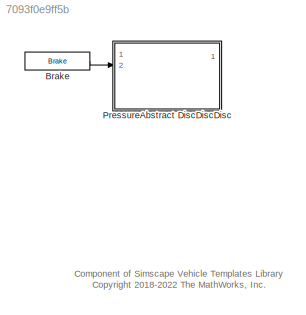
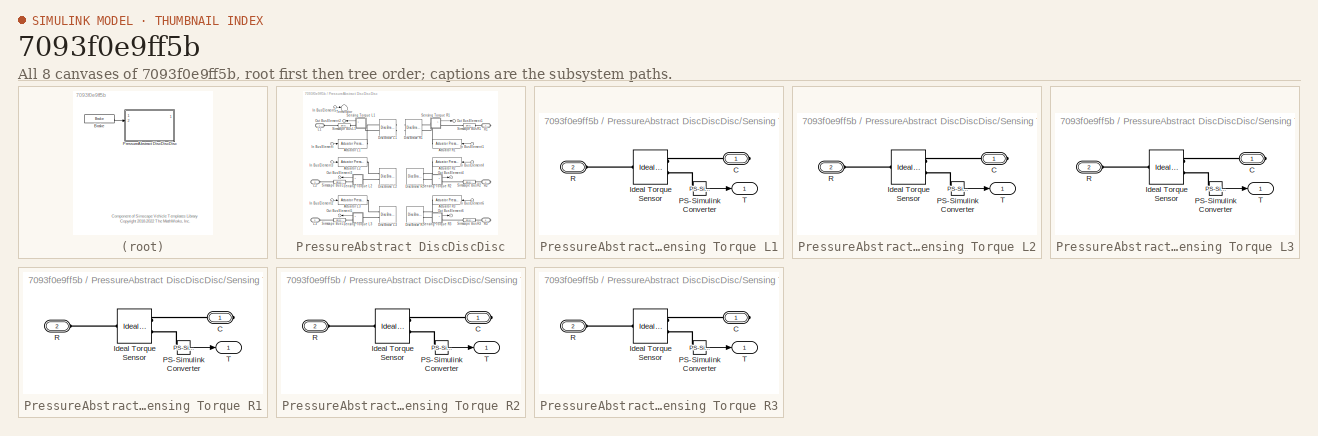
[diagram: thumbnail index - all 8 canvases of the model, root first then tree order]
MODEL slx_7093f0e9ff5b
KIND library
CONFIG AbsTol = auto
CONFIG EnableMultiTasking = off
CONFIG FixedStep = auto
CONFIG MaxStep = auto
CONFIG MinStep = auto
CONFIG RelTol = 1e-3
CONFIG SampleTimeConstraint = Unconstrained
CONFIG SolverName = VariableStepAuto
CONFIG StartTime = 0.0
CONFIG StopTime = 10.0
BLOCK [Reference] Brake  REF=sm_car_lib/Inputs/Control Bus/Brake  (lib defined in slx_05426f0848b6, slx_5dc2867fb1c9)
  Ports = [0, 1]
  SourceBlock = sm_car_lib/Inputs/Control Bus/Brake
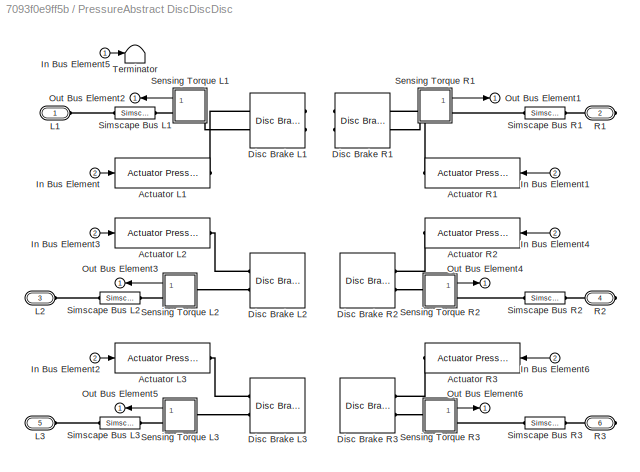
BLOCK [SubSystem] PressureAbstract DiscDiscDisc
  Ports = [2, 1, 0, 0, 0, 3, 3]
  RequestExecContextInheritance = off
  Tag = PublishSubsystem
  VariantControl = Pressure
BLOCK [Reference] PressureAbstract DiscDiscDisc/Actuator L1  REF=Brakes_Elements/Actuator Pressure
  Ports = [1, 0, 0, 0, 0, 0, 1]
  SourceBlock = Brakes_Elements/Actuator Pressure
  SourceType = Brake Actuator, Pressure Input
BLOCK [Reference] PressureAbstract DiscDiscDisc/Actuator L2  REF=Brakes_Elements/Actuator Pressure
  Ports = [1, 0, 0, 0, 0, 0, 1]
  SourceBlock = Brakes_Elements/Actuator Pressure
  SourceType = Brake Actuator, Pressure Input
BLOCK [Reference] PressureAbstract DiscDiscDisc/Actuator L3  REF=Brakes_Elements/Actuator Pressure
  Ports = [1, 0, 0, 0, 0, 0, 1]
  SourceBlock = Brakes_Elements/Actuator Pressure
  SourceType = Brake Actuator, Pressure Input
BLOCK [Reference] PressureAbstract DiscDiscDisc/Actuator R1  REF=Brakes_Elements/Actuator Pressure
  Ports = [1, 0, 0, 0, 0, 0, 1]
  SourceBlock = Brakes_Elements/Actuator Pressure
  SourceType = Brake Actuator, Pressure Input
BLOCK [Reference] PressureAbstract DiscDiscDisc/Actuator R2  REF=Brakes_Elements/Actuator Pressure
  Ports = [1, 0, 0, 0, 0, 0, 1]
  SourceBlock = Brakes_Elements/Actuator Pressure
  SourceType = Brake Actuator, Pressure Input
BLOCK [Reference] PressureAbstract DiscDiscDisc/Actuator R3  REF=Brakes_Elements/Actuator Pressure
  Ports = [1, 0, 0, 0, 0, 0, 1]
  SourceBlock = Brakes_Elements/Actuator Pressure
  SourceType = Brake Actuator, Pressure Input
BLOCK [Reference] PressureAbstract DiscDiscDisc/Disc Brake L1  REF=sdl_lib/Brakes & Detents/Rotational/Disc Brake
  NameLocation = top
  Ports = [0, 0, 0, 0, 0, 2]
  SourceBlock = sdl_lib/Brakes & Detents/Rotational/Disc Brake
  SourceProductBaseCode = LD
  SourceType = Disc Brake
BLOCK [Reference] PressureAbstract DiscDiscDisc/Disc Brake L2  REF=sdl_lib/Brakes & Detents/Rotational/Disc Brake
  Ports = [0, 0, 0, 0, 0, 2]
  SourceBlock = sdl_lib/Brakes & Detents/Rotational/Disc Brake
  SourceProductBaseCode = LD
  SourceType = Disc Brake
BLOCK [Reference] PressureAbstract DiscDiscDisc/Disc Brake L3  REF=sdl_lib/Brakes & Detents/Rotational/Disc Brake
  Ports = [0, 0, 0, 0, 0, 2]
  SourceBlock = sdl_lib/Brakes & Detents/Rotational/Disc Brake
  SourceProductBaseCode = LD
  SourceType = Disc Brake
BLOCK [Reference] PressureAbstract DiscDiscDisc/Disc Brake R1  REF=sdl_lib/Brakes & Detents/Rotational/Disc Brake
  NameLocation = top
  Ports = [0, 0, 0, 0, 0, 2]
  SourceBlock = sdl_lib/Brakes & Detents/Rotational/Disc Brake
  SourceProductBaseCode = LD
  SourceType = Disc Brake
BLOCK [Reference] PressureAbstract DiscDiscDisc/Disc Brake R2  REF=sdl_lib/Brakes & Detents/Rotational/Disc Brake
  Ports = [0, 0, 0, 0, 0, 2]
  SourceBlock = sdl_lib/Brakes & Detents/Rotational/Disc Brake
  SourceProductBaseCode = LD
  SourceType = Disc Brake
BLOCK [Reference] PressureAbstract DiscDiscDisc/Disc Brake R3  REF=sdl_lib/Brakes & Detents/Rotational/Disc Brake
  Ports = [0, 0, 0, 0, 0, 2]
  SourceBlock = sdl_lib/Brakes & Detents/Rotational/Disc Brake
  SourceProductBaseCode = LD
  SourceType = Disc Brake
BLOCK [Inport] PressureAbstract DiscDiscDisc/In Bus Element
  Port = 2
BLOCK [Inport] PressureAbstract DiscDiscDisc/In Bus Element1
  Port = 2
BLOCK [Inport] PressureAbstract DiscDiscDisc/In Bus Element2
  Port = 2
BLOCK [Inport] PressureAbstract DiscDiscDisc/In Bus Element3
  Port = 2
BLOCK [Inport] PressureAbstract DiscDiscDisc/In Bus Element4
  Port = 2
BLOCK [Inport] PressureAbstract DiscDiscDisc/In Bus Element5
BLOCK [Inport] PressureAbstract DiscDiscDisc/In Bus Element6
  Port = 2
BLOCK [PMIOPort] PressureAbstract DiscDiscDisc/L1
  Side = Left
BLOCK [PMIOPort] PressureAbstract DiscDiscDisc/L2
  Port = 3
  Side = Left
BLOCK [PMIOPort] PressureAbstract DiscDiscDisc/L3
  Port = 5
  Side = Left
BLOCK [Outport] PressureAbstract DiscDiscDisc/Out Bus Element1
  VectorParamsAs1DForOutWhenUnconnected = off
BLOCK [Outport] PressureAbstract DiscDiscDisc/Out Bus Element2
  VectorParamsAs1DForOutWhenUnconnected = off
BLOCK [Outport] PressureAbstract DiscDiscDisc/Out Bus Element3
  VectorParamsAs1DForOutWhenUnconnected = off
BLOCK [Outport] PressureAbstract DiscDiscDisc/Out Bus Element4
  VectorParamsAs1DForOutWhenUnconnected = off
BLOCK [Outport] PressureAbstract DiscDiscDisc/Out Bus Element5
  VectorParamsAs1DForOutWhenUnconnected = off
BLOCK [Outport] PressureAbstract DiscDiscDisc/Out Bus Element6
  VectorParamsAs1DForOutWhenUnconnected = off
BLOCK [PMIOPort] PressureAbstract DiscDiscDisc/R1
  Port = 2
  Side = Right
BLOCK [PMIOPort] PressureAbstract DiscDiscDisc/R2
  Port = 4
  Side = Right
BLOCK [PMIOPort] PressureAbstract DiscDiscDisc/R3
  Port = 6
  Side = Right
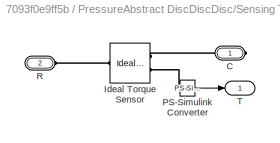
BLOCK [SubSystem] PressureAbstract DiscDiscDisc/Sensing Torque L1
  Ports = [0, 1, 0, 0, 0, 1, 1]
  RequestExecContextInheritance = off
BLOCK [PMIOPort] PressureAbstract DiscDiscDisc/Sensing Torque L1/C
  Side = Right
BLOCK [Reference] PressureAbstract DiscDiscDisc/Sensing Torque L1/Ideal Torque Sensor  REF=fl_lib/Mechanical/Mechanical Sensors/Ideal Torque Sensor
  Ports = [0, 0, 0, 0, 0, 1, 2]
  SourceBlock = fl_lib/Mechanical/Mechanical Sensors/Ideal Torque Sensor
  SourceProductBaseCode = PW,SS,VE
  SourceType = Ideal Torque Sensor
BLOCK [Reference] PressureAbstract DiscDiscDisc/Sensing Torque L1/PS-Simulink Converter  REF=nesl_utility/PS-Simulink
Converter
  Ports = [0, 1, 0, 0, 0, 1]
  SourceBlock = nesl_utility/PS-Simulink\nConverter
  SourceProductBaseCode = SS,PW,VE
  SourceType = PS-Simulink\nConverter
BLOCK [PMIOPort] PressureAbstract DiscDiscDisc/Sensing Torque L1/R
  Port = 2
  Side = Left
BLOCK [Outport] PressureAbstract DiscDiscDisc/Sensing Torque L1/T
  VectorParamsAs1DForOutWhenUnconnected = off
BLOCK [SubSystem] PressureAbstract DiscDiscDisc/Sensing Torque L2
  Ports = [0, 1, 0, 0, 0, 1, 1]
  RequestExecContextInheritance = off
BLOCK [PMIOPort] PressureAbstract DiscDiscDisc/Sensing Torque L2/C
  Side = Right
BLOCK [Reference] PressureAbstract DiscDiscDisc/Sensing Torque L2/Ideal Torque Sensor  REF=fl_lib/Mechanical/Mechanical Sensors/Ideal Torque Sensor
  Ports = [0, 0, 0, 0, 0, 1, 2]
  SourceBlock = fl_lib/Mechanical/Mechanical Sensors/Ideal Torque Sensor
  SourceProductBaseCode = PW,SS,VE
  SourceType = Ideal Torque Sensor
BLOCK [Reference] PressureAbstract DiscDiscDisc/Sensing Torque L2/PS-Simulink Converter  REF=nesl_utility/PS-Simulink
Converter
  Ports = [0, 1, 0, 0, 0, 1]
  SourceBlock = nesl_utility/PS-Simulink\nConverter
  SourceProductBaseCode = SS,PW,VE
  SourceType = PS-Simulink\nConverter
BLOCK [PMIOPort] PressureAbstract DiscDiscDisc/Sensing Torque L2/R
  Port = 2
  Side = Left
BLOCK [Outport] PressureAbstract DiscDiscDisc/Sensing Torque L2/T
  VectorParamsAs1DForOutWhenUnconnected = off
BLOCK [SubSystem] PressureAbstract DiscDiscDisc/Sensing Torque L3
  Ports = [0, 1, 0, 0, 0, 1, 1]
  RequestExecContextInheritance = off
BLOCK [PMIOPort] PressureAbstract DiscDiscDisc/Sensing Torque L3/C
  Side = Right
BLOCK [Reference] PressureAbstract DiscDiscDisc/Sensing Torque L3/Ideal Torque Sensor  REF=fl_lib/Mechanical/Mechanical Sensors/Ideal Torque Sensor
  Ports = [0, 0, 0, 0, 0, 1, 2]
  SourceBlock = fl_lib/Mechanical/Mechanical Sensors/Ideal Torque Sensor
  SourceProductBaseCode = PW,SS,VE
  SourceType = Ideal Torque Sensor
BLOCK [Reference] PressureAbstract DiscDiscDisc/Sensing Torque L3/PS-Simulink Converter  REF=nesl_utility/PS-Simulink
Converter
  Ports = [0, 1, 0, 0, 0, 1]
  SourceBlock = nesl_utility/PS-Simulink\nConverter
  SourceProductBaseCode = SS,PW,VE
  SourceType = PS-Simulink\nConverter
BLOCK [PMIOPort] PressureAbstract DiscDiscDisc/Sensing Torque L3/R
  Port = 2
  Side = Left
BLOCK [Outport] PressureAbstract DiscDiscDisc/Sensing Torque L3/T
  VectorParamsAs1DForOutWhenUnconnected = off
BLOCK [SubSystem] PressureAbstract DiscDiscDisc/Sensing Torque R1
  Ports = [0, 1, 0, 0, 0, 1, 1]
  RequestExecContextInheritance = off
BLOCK [PMIOPort] PressureAbstract DiscDiscDisc/Sensing Torque R1/C
  Side = Right
BLOCK [Reference] PressureAbstract DiscDiscDisc/Sensing Torque R1/Ideal Torque Sensor  REF=fl_lib/Mechanical/Mechanical Sensors/Ideal Torque Sensor
  Ports = [0, 0, 0, 0, 0, 1, 2]
  SourceBlock = fl_lib/Mechanical/Mechanical Sensors/Ideal Torque Sensor
  SourceProductBaseCode = PW,SS,VE
  SourceType = Ideal Torque Sensor
BLOCK [Reference] PressureAbstract DiscDiscDisc/Sensing Torque R1/PS-Simulink Converter  REF=nesl_utility/PS-Simulink
Converter
  Ports = [0, 1, 0, 0, 0, 1]
  SourceBlock = nesl_utility/PS-Simulink\nConverter
  SourceProductBaseCode = SS,PW,VE
  SourceType = PS-Simulink\nConverter
BLOCK [PMIOPort] PressureAbstract DiscDiscDisc/Sensing Torque R1/R
  Port = 2
  Side = Left
BLOCK [Outport] PressureAbstract DiscDiscDisc/Sensing Torque R1/T
  VectorParamsAs1DForOutWhenUnconnected = off
BLOCK [SubSystem] PressureAbstract DiscDiscDisc/Sensing Torque R2
  Ports = [0, 1, 0, 0, 0, 1, 1]
  RequestExecContextInheritance = off
BLOCK [PMIOPort] PressureAbstract DiscDiscDisc/Sensing Torque R2/C
  Side = Right
BLOCK [Reference] PressureAbstract DiscDiscDisc/Sensing Torque R2/Ideal Torque Sensor  REF=fl_lib/Mechanical/Mechanical Sensors/Ideal Torque Sensor
  Ports = [0, 0, 0, 0, 0, 1, 2]
  SourceBlock = fl_lib/Mechanical/Mechanical Sensors/Ideal Torque Sensor
  SourceProductBaseCode = PW,SS,VE
  SourceType = Ideal Torque Sensor
BLOCK [Reference] PressureAbstract DiscDiscDisc/Sensing Torque R2/PS-Simulink Converter  REF=nesl_utility/PS-Simulink
Converter
  Ports = [0, 1, 0, 0, 0, 1]
  SourceBlock = nesl_utility/PS-Simulink\nConverter
  SourceProductBaseCode = SS,PW,VE
  SourceType = PS-Simulink\nConverter
BLOCK [PMIOPort] PressureAbstract DiscDiscDisc/Sensing Torque R2/R
  Port = 2
  Side = Left
BLOCK [Outport] PressureAbstract DiscDiscDisc/Sensing Torque R2/T
  VectorParamsAs1DForOutWhenUnconnected = off
BLOCK [SubSystem] PressureAbstract DiscDiscDisc/Sensing Torque R3
  Ports = [0, 1, 0, 0, 0, 1, 1]
  RequestExecContextInheritance = off
BLOCK [PMIOPort] PressureAbstract DiscDiscDisc/Sensing Torque R3/C
  Side = Right
BLOCK [Reference] PressureAbstract DiscDiscDisc/Sensing Torque R3/Ideal Torque Sensor  REF=fl_lib/Mechanical/Mechanical Sensors/Ideal Torque Sensor
  Ports = [0, 0, 0, 0, 0, 1, 2]
  SourceBlock = fl_lib/Mechanical/Mechanical Sensors/Ideal Torque Sensor
  SourceProductBaseCode = PW,SS,VE
  SourceType = Ideal Torque Sensor
BLOCK [Reference] PressureAbstract DiscDiscDisc/Sensing Torque R3/PS-Simulink Converter  REF=nesl_utility/PS-Simulink
Converter
  Ports = [0, 1, 0, 0, 0, 1]
  SourceBlock = nesl_utility/PS-Simulink\nConverter
  SourceProductBaseCode = SS,PW,VE
  SourceType = PS-Simulink\nConverter
BLOCK [PMIOPort] PressureAbstract DiscDiscDisc/Sensing Torque R3/R
  Port = 2
  Side = Left
BLOCK [Outport] PressureAbstract DiscDiscDisc/Sensing Torque R3/T
  VectorParamsAs1DForOutWhenUnconnected = off
BLOCK [SimscapeBus] PressureAbstract DiscDiscDisc/Simscape Bus L1
  HierarchyStrings = Axle1D
  Ports = [0, 0, 0, 0, 0, 1, 1]
BLOCK [SimscapeBus] PressureAbstract DiscDiscDisc/Simscape Bus L2
  HierarchyStrings = Axle1D
  Ports = [0, 0, 0, 0, 0, 1, 1]
BLOCK [SimscapeBus] PressureAbstract DiscDiscDisc/Simscape Bus L3
  HierarchyStrings = Axle1D
  Ports = [0, 0, 0, 0, 0, 1, 1]
BLOCK [SimscapeBus] PressureAbstract DiscDiscDisc/Simscape Bus R1
  HierarchyStrings = Axle1D
  Ports = [0, 0, 0, 0, 0, 1, 1]
BLOCK [SimscapeBus] PressureAbstract DiscDiscDisc/Simscape Bus R2
  HierarchyStrings = Axle1D
  Ports = [0, 0, 0, 0, 0, 1, 1]
BLOCK [SimscapeBus] PressureAbstract DiscDiscDisc/Simscape Bus R3
  HierarchyStrings = Axle1D
  Ports = [0, 0, 0, 0, 0, 1, 1]
BLOCK [Terminator] PressureAbstract DiscDiscDisc/Terminator
ANNOTATION (root): Component of Simscape Vehicle Templates Library <copyright redacted>
LINE Brake:1 -> PressureAbstract DiscDiscDisc:2
LINE PressureAbstract DiscDiscDisc/In Bus Element1:1 -> PressureAbstract DiscDiscDisc/Actuator R1:1
LINE PressureAbstract DiscDiscDisc/In Bus Element2:1 -> PressureAbstract DiscDiscDisc/Actuator L3:1
LINE PressureAbstract DiscDiscDisc/In Bus Element3:1 -> PressureAbstract DiscDiscDisc/Actuator L2:1
LINE PressureAbstract DiscDiscDisc/In Bus Element4:1 -> PressureAbstract DiscDiscDisc/Actuator R2:1
LINE PressureAbstract DiscDiscDisc/In Bus Element5:1 -> PressureAbstract DiscDiscDisc/Terminator:1
LINE PressureAbstract DiscDiscDisc/In Bus Element6:1 -> PressureAbstract DiscDiscDisc/Actuator R3:1
LINE PressureAbstract DiscDiscDisc/In Bus Element:1 -> PressureAbstract DiscDiscDisc/Actuator L1:1
LINE PressureAbstract DiscDiscDisc/Sensing Torque L1/PS-Simulink Converter:1 -> PressureAbstract DiscDiscDisc/Sensing Torque L1/T:1
LINE PressureAbstract DiscDiscDisc/Sensing Torque L1:1 -> PressureAbstract DiscDiscDisc/Out Bus Element2:1
LINE PressureAbstract DiscDiscDisc/Sensing Torque L2/PS-Simulink Converter:1 -> PressureAbstract DiscDiscDisc/Sensing Torque L2/T:1
LINE PressureAbstract DiscDiscDisc/Sensing Torque L2:1 -> PressureAbstract DiscDiscDisc/Out Bus Element3:1
LINE PressureAbstract DiscDiscDisc/Sensing Torque L3/PS-Simulink Converter:1 -> PressureAbstract DiscDiscDisc/Sensing Torque L3/T:1
LINE PressureAbstract DiscDiscDisc/Sensing Torque L3:1 -> PressureAbstract DiscDiscDisc/Out Bus Element5:1
LINE PressureAbstract DiscDiscDisc/Sensing Torque R1/PS-Simulink Converter:1 -> PressureAbstract DiscDiscDisc/Sensing Torque R1/T:1
LINE PressureAbstract DiscDiscDisc/Sensing Torque R1:1 -> PressureAbstract DiscDiscDisc/Out Bus Element1:1
LINE PressureAbstract DiscDiscDisc/Sensing Torque R2/PS-Simulink Converter:1 -> PressureAbstract DiscDiscDisc/Sensing Torque R2/T:1
LINE PressureAbstract DiscDiscDisc/Sensing Torque R2:1 -> PressureAbstract DiscDiscDisc/Out Bus Element4:1
LINE PressureAbstract DiscDiscDisc/Sensing Torque R3/PS-Simulink Converter:1 -> PressureAbstract DiscDiscDisc/Sensing Torque R3/T:1
LINE PressureAbstract DiscDiscDisc/Sensing Torque R3:1 -> PressureAbstract DiscDiscDisc/Out Bus Element6:1
PLINE PressureAbstract DiscDiscDisc/Actuator L1:RConn1 -- PressureAbstract DiscDiscDisc/Disc Brake L1:LConn1
PLINE PressureAbstract DiscDiscDisc/Actuator L2:RConn1 -- PressureAbstract DiscDiscDisc/Disc Brake L2:LConn1
PLINE PressureAbstract DiscDiscDisc/Actuator L3:RConn1 -- PressureAbstract DiscDiscDisc/Disc Brake L3:LConn1
PLINE PressureAbstract DiscDiscDisc/Actuator R1:RConn1 -- PressureAbstract DiscDiscDisc/Disc Brake R1:LConn1
PLINE PressureAbstract DiscDiscDisc/Actuator R2:RConn1 -- PressureAbstract DiscDiscDisc/Disc Brake R2:LConn1
PLINE PressureAbstract DiscDiscDisc/Actuator R3:RConn1 -- PressureAbstract DiscDiscDisc/Disc Brake R3:LConn1
PLINE PressureAbstract DiscDiscDisc/Disc Brake L1:LConn2 -- PressureAbstract DiscDiscDisc/Sensing Torque L1:LConn1
PLINE PressureAbstract DiscDiscDisc/Disc Brake L2:LConn2 -- PressureAbstract DiscDiscDisc/Sensing Torque L2:LConn1
PLINE PressureAbstract DiscDiscDisc/Disc Brake L3:LConn2 -- PressureAbstract DiscDiscDisc/Sensing Torque L3:LConn1
PLINE PressureAbstract DiscDiscDisc/Disc Brake R1:LConn2 -- PressureAbstract DiscDiscDisc/Sensing Torque R1:LConn1
PLINE PressureAbstract DiscDiscDisc/Disc Brake R2:LConn2 -- PressureAbstract DiscDiscDisc/Sensing Torque R2:LConn1
PLINE PressureAbstract DiscDiscDisc/Disc Brake R3:LConn2 -- PressureAbstract DiscDiscDisc/Sensing Torque R3:LConn1
PLINE PressureAbstract DiscDiscDisc/L1:RConn1 -- PressureAbstract DiscDiscDisc/Simscape Bus L1:RConn1
PLINE PressureAbstract DiscDiscDisc/L2:RConn1 -- PressureAbstract DiscDiscDisc/Simscape Bus L2:RConn1
PLINE PressureAbstract DiscDiscDisc/L3:RConn1 -- PressureAbstract DiscDiscDisc/Simscape Bus L3:RConn1
PLINE PressureAbstract DiscDiscDisc/R1:RConn1 -- PressureAbstract DiscDiscDisc/Simscape Bus R1:RConn1
PLINE PressureAbstract DiscDiscDisc/R2:RConn1 -- PressureAbstract DiscDiscDisc/Simscape Bus R2:RConn1
PLINE PressureAbstract DiscDiscDisc/R3:RConn1 -- PressureAbstract DiscDiscDisc/Simscape Bus R3:RConn1
PLINE PressureAbstract DiscDiscDisc/Sensing Torque L1/C:RConn1 -- PressureAbstract DiscDiscDisc/Sensing Torque L1/Ideal Torque Sensor:RConn1
PLINE PressureAbstract DiscDiscDisc/Sensing Torque L1/Ideal Torque Sensor:LConn1 -- PressureAbstract DiscDiscDisc/Sensing Torque L1/R:RConn1
PLINE PressureAbstract DiscDiscDisc/Sensing Torque L1/Ideal Torque Sensor:RConn2 -- PressureAbstract DiscDiscDisc/Sensing Torque L1/PS-Simulink Converter:LConn1
PLINE PressureAbstract DiscDiscDisc/Sensing Torque L1:RConn1 -- PressureAbstract DiscDiscDisc/Simscape Bus L1:LConn1
PLINE PressureAbstract DiscDiscDisc/Sensing Torque L2/C:RConn1 -- PressureAbstract DiscDiscDisc/Sensing Torque L2/Ideal Torque Sensor:RConn1
PLINE PressureAbstract DiscDiscDisc/Sensing Torque L2/Ideal Torque Sensor:LConn1 -- PressureAbstract DiscDiscDisc/Sensing Torque L2/R:RConn1
PLINE PressureAbstract DiscDiscDisc/Sensing Torque L2/Ideal Torque Sensor:RConn2 -- PressureAbstract DiscDiscDisc/Sensing Torque L2/PS-Simulink Converter:LConn1
PLINE PressureAbstract DiscDiscDisc/Sensing Torque L2:RConn1 -- PressureAbstract DiscDiscDisc/Simscape Bus L2:LConn1
PLINE PressureAbstract DiscDiscDisc/Sensing Torque L3/C:RConn1 -- PressureAbstract DiscDiscDisc/Sensing Torque L3/Ideal Torque Sensor:RConn1
PLINE PressureAbstract DiscDiscDisc/Sensing Torque L3/Ideal Torque Sensor:LConn1 -- PressureAbstract DiscDiscDisc/Sensing Torque L3/R:RConn1
PLINE PressureAbstract DiscDiscDisc/Sensing Torque L3/Ideal Torque Sensor:RConn2 -- PressureAbstract DiscDiscDisc/Sensing Torque L3/PS-Simulink Converter:LConn1
PLINE PressureAbstract DiscDiscDisc/Sensing Torque L3:RConn1 -- PressureAbstract DiscDiscDisc/Simscape Bus L3:LConn1
PLINE PressureAbstract DiscDiscDisc/Sensing Torque R1/C:RConn1 -- PressureAbstract DiscDiscDisc/Sensing Torque R1/Ideal Torque Sensor:RConn1
PLINE PressureAbstract DiscDiscDisc/Sensing Torque R1/Ideal Torque Sensor:LConn1 -- PressureAbstract DiscDiscDisc/Sensing Torque R1/R:RConn1
PLINE PressureAbstract DiscDiscDisc/Sensing Torque R1/Ideal Torque Sensor:RConn2 -- PressureAbstract DiscDiscDisc/Sensing Torque R1/PS-Simulink Converter:LConn1
PLINE PressureAbstract DiscDiscDisc/Sensing Torque R1:RConn1 -- PressureAbstract DiscDiscDisc/Simscape Bus R1:LConn1
PLINE PressureAbstract DiscDiscDisc/Sensing Torque R2/C:RConn1 -- PressureAbstract DiscDiscDisc/Sensing Torque R2/Ideal Torque Sensor:RConn1
PLINE PressureAbstract DiscDiscDisc/Sensing Torque R2/Ideal Torque Sensor:LConn1 -- PressureAbstract DiscDiscDisc/Sensing Torque R2/R:RConn1
PLINE PressureAbstract DiscDiscDisc/Sensing Torque R2/Ideal Torque Sensor:RConn2 -- PressureAbstract DiscDiscDisc/Sensing Torque R2/PS-Simulink Converter:LConn1
PLINE PressureAbstract DiscDiscDisc/Sensing Torque R2:RConn1 -- PressureAbstract DiscDiscDisc/Simscape Bus R2:LConn1
PLINE PressureAbstract DiscDiscDisc/Sensing Torque R3/C:RConn1 -- PressureAbstract DiscDiscDisc/Sensing Torque R3/Ideal Torque Sensor:RConn1
PLINE PressureAbstract DiscDiscDisc/Sensing Torque R3/Ideal Torque Sensor:LConn1 -- PressureAbstract DiscDiscDisc/Sensing Torque R3/R:RConn1
PLINE PressureAbstract DiscDiscDisc/Sensing Torque R3/Ideal Torque Sensor:RConn2 -- PressureAbstract DiscDiscDisc/Sensing Torque R3/PS-Simulink Converter:LConn1
PLINE PressureAbstract DiscDiscDisc/Sensing Torque R3:RConn1 -- PressureAbstract DiscDiscDisc/Simscape Bus R3:LConn1
